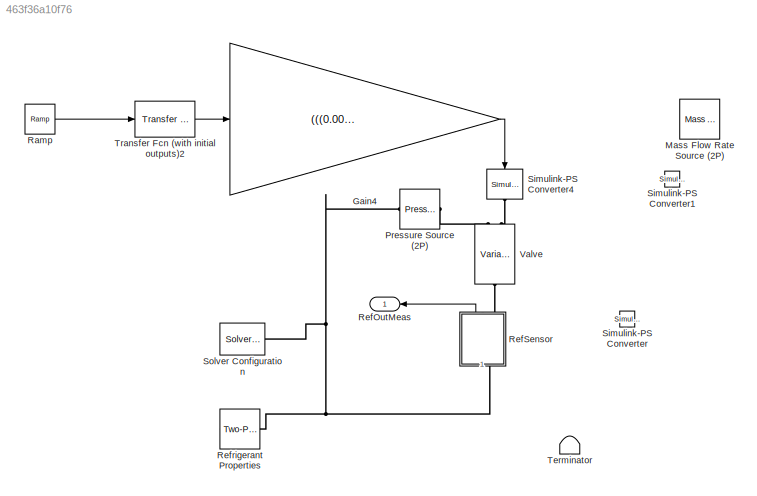
MODEL slx_463f36a10f76
KIND model
CONFIG AbsTol = auto
CONFIG EnableMultiTasking = off
CONFIG FixedStep = auto
CONFIG MaxStep = auto
CONFIG MinStep = auto
CONFIG RelTol = 1e-3
CONFIG SampleTimeConstraint = Unconstrained
CONFIG SolverName = VariableStepAuto
CONFIG StartTime = 0.0
CONFIG StopTime = 10.0
BLOCK [Gain] Gain4
  Gain = (((0.005/2)^2)*pi)/100*2
BLOCK [Reference] Mass Flow Rate Source (2P)  REF=fl_lib/Two-Phase Fluid/Sources/Mass Flow Rate
Source (2P)
  Commented = on
  Ports = [0, 0, 0, 0, 0, 1, 1]
  SourceBlock = fl_lib/Two-Phase Fluid/Sources/Mass Flow Rate\nSource (2P)
  SourceProductBaseCode = SS
  SourceType = Mass Flow Rate\nSource (2P)
BLOCK [Reference] Pressure Source (2P)  REF=fl_lib/Two-Phase Fluid/Sources/Pressure Source (2P)
  Ports = [0, 0, 0, 0, 0, 1, 1]
  SourceBlock = fl_lib/Two-Phase Fluid/Sources/Pressure Source (2P)
  SourceProductBaseCode = SS
  SourceType = Pressure Source (2P)
BLOCK [Reference] Ramp  REF=simulink/Sources/Ramp
  Ports = [0, 1]
  SourceBlock = simulink/Sources/Ramp
  SourceProductBaseCode = SL
  SourceType = Ramp
BLOCK [Outport] RefOutMeas
  NameLocation = top
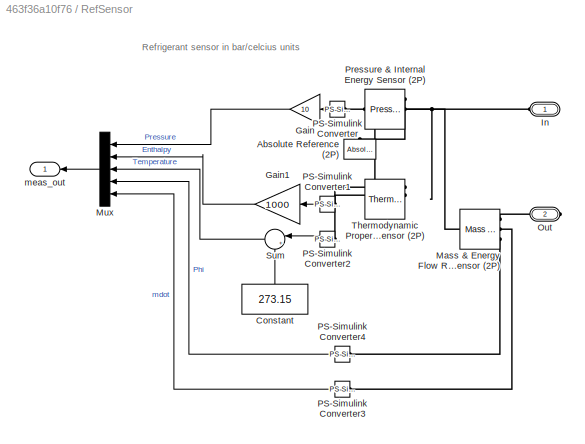
BLOCK [SubSystem] RefSensor
  NameLocation = left
  PortSchema = {"entries":[{"content":{"sides":[{"content":{"connectorIds":["LConn1","Out1"]},"type":"ConnectorPlacement.EquallySpacedRectSide","uuid":"384ca129-c08e-4242-8b56-38a57a5275bd"},{"content":{"connectorIds":["RConn1"],"side":"RIGHT"},"type":"ConnectorPlacement.EquallySpacedRectSide","uuid":"d8d27130-51db-4533-93b1-df7418a29f3a"},{"content":{"connectorIds":[],"side":"TOP"},"type":"ConnectorPlacement.Eq...<+398ch>
  Ports = [0, 1, 0, 0, 0, 1, 1]
  RequestExecContextInheritance = off
BLOCK [Reference] RefSensor/Absolute Reference (2P)  REF=fl_lib/Two-Phase Fluid/Elements/Absolute Reference
(2P)
  NameLocation = right
  Ports = [0, 0, 0, 0, 0, 1]
  SourceBlock = fl_lib/Two-Phase Fluid/Elements/Absolute Reference\n(2P)
  SourceProductBaseCode = SS
  SourceType = Absolute Reference\n(2P)
BLOCK [Constant] RefSensor/Constant
  NameLocation = right
  Value = 273.15
BLOCK [Gain] RefSensor/Gain
  Gain = 10
  NameLocation = top
BLOCK [Gain] RefSensor/Gain1
  Gain = 1000
  NameLocation = top
BLOCK [PMIOPort] RefSensor/In
  Side = Left
BLOCK [Reference] RefSensor/Mass & Energy Flow Rate Sensor (2P)  REF=fl_lib/Two-Phase Fluid/Sensors/Mass & Energy Flow
Rate Sensor (2P)
  Ports = [0, 0, 0, 0, 0, 1, 3]
  SourceBlock = fl_lib/Two-Phase Fluid/Sensors/Mass & Energy Flow\nRate Sensor (2P)
  SourceProductBaseCode = SS
  SourceType = Mass & Energy Flow\nRate Sensor (2P)
BLOCK [Mux] RefSensor/Mux
  DisplayOption = bar
  Inputs = 5
  NameLocation = top
  Ports = [5, 1]
BLOCK [PMIOPort] RefSensor/Out
  Port = 2
  Side = Right
BLOCK [Reference] RefSensor/PS-Simulink Converter  REF=nesl_utility/PS-Simulink
Converter
  NameLocation = top
  Ports = [0, 1, 0, 0, 0, 1]
  SourceBlock = nesl_utility/PS-Simulink\nConverter
  SourceProductBaseCode = PW,SS
  SourceType = PS-Simulink\nConverter
BLOCK [Reference] RefSensor/PS-Simulink Converter1  REF=nesl_utility/PS-Simulink
Converter
  NameLocation = top
  Ports = [0, 1, 0, 0, 0, 1]
  SourceBlock = nesl_utility/PS-Simulink\nConverter
  SourceProductBaseCode = PW,SS
  SourceType = PS-Simulink\nConverter
BLOCK [Reference] RefSensor/PS-Simulink Converter2  REF=nesl_utility/PS-Simulink
Converter
  NameLocation = top
  Ports = [0, 1, 0, 0, 0, 1]
  SourceBlock = nesl_utility/PS-Simulink\nConverter
  SourceProductBaseCode = PW,SS
  SourceType = PS-Simulink\nConverter
BLOCK [Reference] RefSensor/PS-Simulink Converter3  REF=nesl_utility/PS-Simulink
Converter
  NameLocation = top
  Ports = [0, 1, 0, 0, 0, 1]
  SourceBlock = nesl_utility/PS-Simulink\nConverter
  SourceProductBaseCode = PW,SS
  SourceType = PS-Simulink\nConverter
BLOCK [Reference] RefSensor/PS-Simulink Converter4  REF=nesl_utility/PS-Simulink
Converter
  NameLocation = top
  Ports = [0, 1, 0, 0, 0, 1]
  SourceBlock = nesl_utility/PS-Simulink\nConverter
  SourceProductBaseCode = PW,SS
  SourceType = PS-Simulink\nConverter
BLOCK [Reference] RefSensor/Pressure & Internal Energy Sensor (2P)  REF=fl_lib/Two-Phase Fluid/Sensors/Pressure & Internal
Energy Sensor (2P)
  NameLocation = top
  Ports = [0, 0, 0, 0, 0, 1, 3]
  SourceBlock = fl_lib/Two-Phase Fluid/Sensors/Pressure & Internal\nEnergy Sensor (2P)
  SourceProductBaseCode = SS
  SourceType = Pressure & Internal\nEnergy Sensor (2P)
BLOCK [Sum] RefSensor/Sum
  Inputs = |+-
  Ports = [2, 1]
BLOCK [Reference] RefSensor/Thermodynamic Properties Sensor (2P)  REF=fl_lib/Two-Phase Fluid/Sensors/Thermodynamic
Properties Sensor
(2P)
  NameLocation = top
  Ports = [0, 0, 0, 0, 0, 1, 4]
  SourceBlock = fl_lib/Two-Phase Fluid/Sensors/Thermodynamic\nProperties Sensor\n(2P)
  SourceProductBaseCode = SS
  SourceType = Thermodynamic\nProperties Sensor\n(2P)
BLOCK [Outport] RefSensor/meas_out
  NameLocation = top
BLOCK [Reference] Refrigerant Properties  REF=fl_lib/Two-Phase Fluid/Utilities/Two-Phase Fluid
Properties (2P)
  NameLocation = top
  Ports = [0, 0, 0, 0, 0, 0, 1]
  SourceBlock = fl_lib/Two-Phase Fluid/Utilities/Two-Phase Fluid\nProperties (2P)
  SourceProductBaseCode = SS
  SourceType = Two-Phase Fluid\nProperties (2P)
BLOCK [Reference] Simulink-PS Converter  REF=nesl_utility/Simulink-PS
Converter
  Commented = on
  Ports = [1, 0, 0, 0, 0, 0, 1]
  SourceBlock = nesl_utility/Simulink-PS\nConverter
  SourceProductBaseCode = PW,SS
  SourceType = Simulink-PS\nConverter
BLOCK [Reference] Simulink-PS Converter1  REF=nesl_utility/Simulink-PS
Converter
  Commented = on
  Ports = [1, 0, 0, 0, 0, 0, 1]
  SourceBlock = nesl_utility/Simulink-PS\nConverter
  SourceProductBaseCode = PW,SS
  SourceType = Simulink-PS\nConverter
BLOCK [Reference] Simulink-PS Converter4  REF=nesl_utility/Simulink-PS
Converter
  Commented = on
  NameLocation = left
  Ports = [1, 0, 0, 0, 0, 0, 1]
  SourceBlock = nesl_utility/Simulink-PS\nConverter
  SourceProductBaseCode = PW,SS
  SourceType = Simulink-PS\nConverter
BLOCK [Reference] Solver Configuration  REF=nesl_utility/Solver
Configuration
  NameLocation = top
  Ports = [0, 0, 0, 0, 0, 0, 1]
  SourceBlock = nesl_utility/Solver\nConfiguration
  SourceProductBaseCode = PW,SS
  SourceType = Solver\nConfiguration
BLOCK [Terminator] Terminator
  Commented = on
  NameLocation = left
BLOCK [Reference] Transfer Fcn (with initial outputs)2  REF=simulink_extras/Additional
Linear/Transfer Fcn
(with initial outputs)
  Ports = [1, 1]
  SourceBlock = simulink_extras/Additional\nLinear/Transfer Fcn\n(with initial outputs)
  SourceProductBaseCode = SL
  SourceType = Transfer Function with Initial Outputs
BLOCK [Reference] Valve  REF=fl_lib/Two-Phase Fluid/Elements/Variable Local
Restriction (2P)
  NameLocation = left
  Ports = [0, 0, 0, 0, 0, 2, 1]
  SourceBlock = fl_lib/Two-Phase Fluid/Elements/Variable Local\nRestriction (2P)
  SourceProductBaseCode = SS
  SourceType = Variable Local\nRestriction (2P)
ANNOTATION RefSensor: Refrigerant sensor in bar/celcius units
LINE Gain4:1 -> Simulink-PS Converter4:1
LINE Ramp:1 -> Transfer Fcn (with initial outputs)2:1
LINE RefSensor/Constant:1 -> RefSensor/Sum:2
LINE RefSensor/Gain1:1 -> RefSensor/Mux:2
LINE RefSensor/Gain:1 -> RefSensor/Mux:1
LINE RefSensor/Mux:1 -> RefSensor/meas_out:1
LINE RefSensor/PS-Simulink Converter1:1 -> RefSensor/Gain1:1
LINE RefSensor/PS-Simulink Converter2:1 -> RefSensor/Sum:1
LINE RefSensor/PS-Simulink Converter3:1 -> RefSensor/Mux:5
LINE RefSensor/PS-Simulink Converter4:1 -> RefSensor/Mux:4
LINE RefSensor/PS-Simulink Converter:1 -> RefSensor/Gain:1
LINE RefSensor/Sum:1 -> RefSensor/Mux:3
LINE RefSensor:1 -> RefOutMeas:1
LINE Transfer Fcn (with initial outputs)2:1 -> Gain4:1
PNET net1: Pressure Source (2P):LConn1 -- RefSensor:RConn1 -- Refrigerant Properties:RConn1 -- Solver Configuration:RConn1
PLINE Pressure Source (2P):RConn1 -- Valve:LConn1
PLINE RefSensor/Absolute Reference (2P):LConn1 -- RefSensor/Pressure & Internal Energy Sensor (2P):RConn1
PNET net2: RefSensor/In:RConn1 -- RefSensor/Mass & Energy Flow Rate Sensor (2P):LConn1 -- RefSensor/Pressure & Internal Energy Sensor (2P):LConn1 -- RefSensor/Thermodynamic Properties Sensor (2P):LConn1
PLINE RefSensor/Mass & Energy Flow Rate Sensor (2P):RConn1 -- RefSensor/Out:RConn1
PLINE RefSensor/Mass & Energy Flow Rate Sensor (2P):RConn2 -- RefSensor/PS-Simulink Converter3:LConn1
PLINE RefSensor/Mass & Energy Flow Rate Sensor (2P):RConn3 -- RefSensor/PS-Simulink Converter4:LConn1
PLINE RefSensor/PS-Simulink Converter1:LConn1 -- RefSensor/Thermodynamic Properties Sensor (2P):RConn2
PLINE RefSensor/PS-Simulink Converter2:LConn1 -- RefSensor/Thermodynamic Properties Sensor (2P):RConn1
PLINE RefSensor/PS-Simulink Converter:LConn1 -- RefSensor/Pressure & Internal Energy Sensor (2P):RConn2
PLINE RefSensor:LConn1 -- Valve:RConn1
PLINE Simulink-PS Converter4:RConn1 -- Valve:LConn2
note: PNET lines group multi-terminal physical nets as a canonical sorted terminal list (undirected conserving connections); 2-terminal nets keep the pairwise PLINE form
